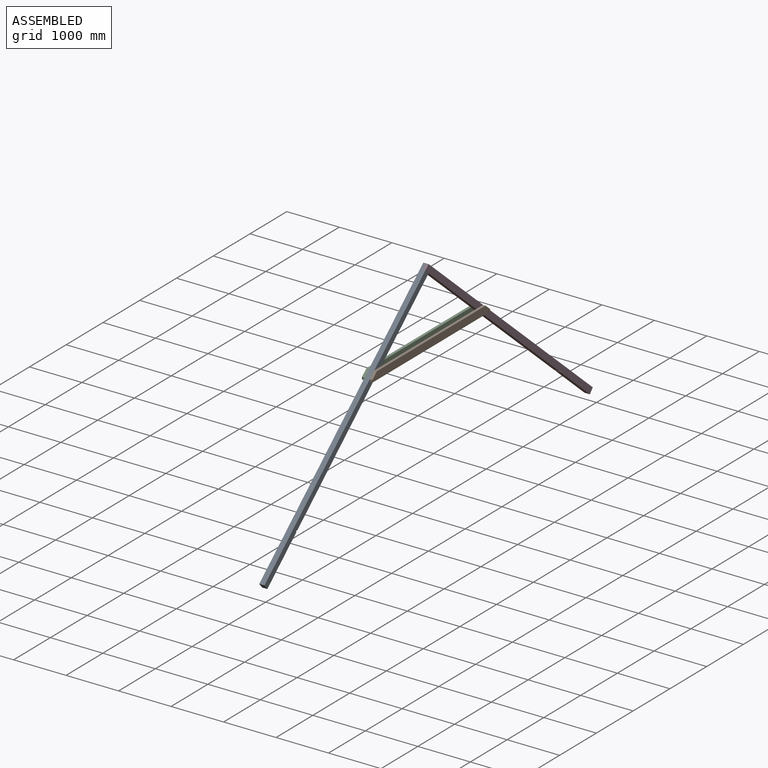
[diagram: assembled view]
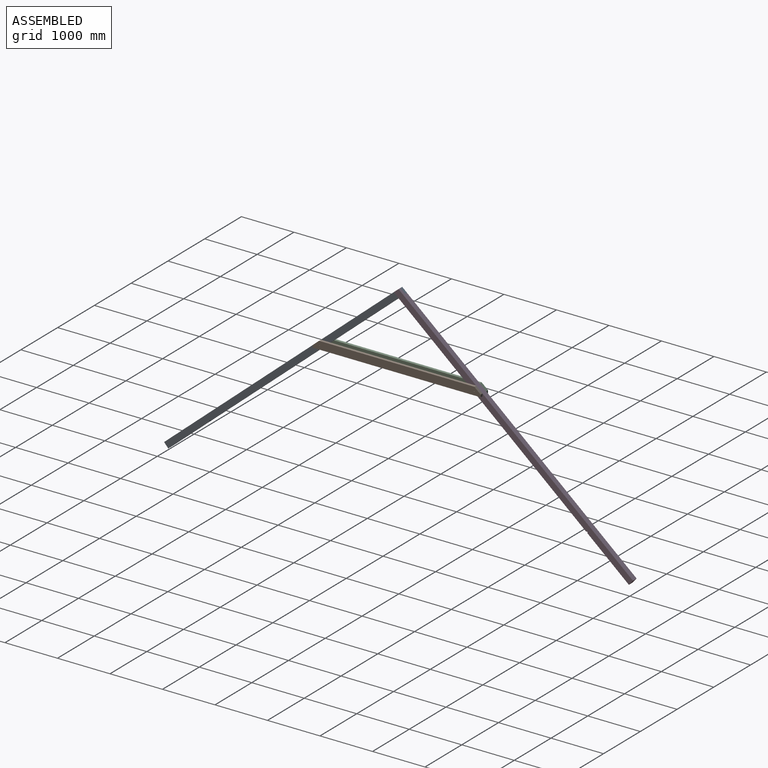
[diagram: assembled view, second angle]
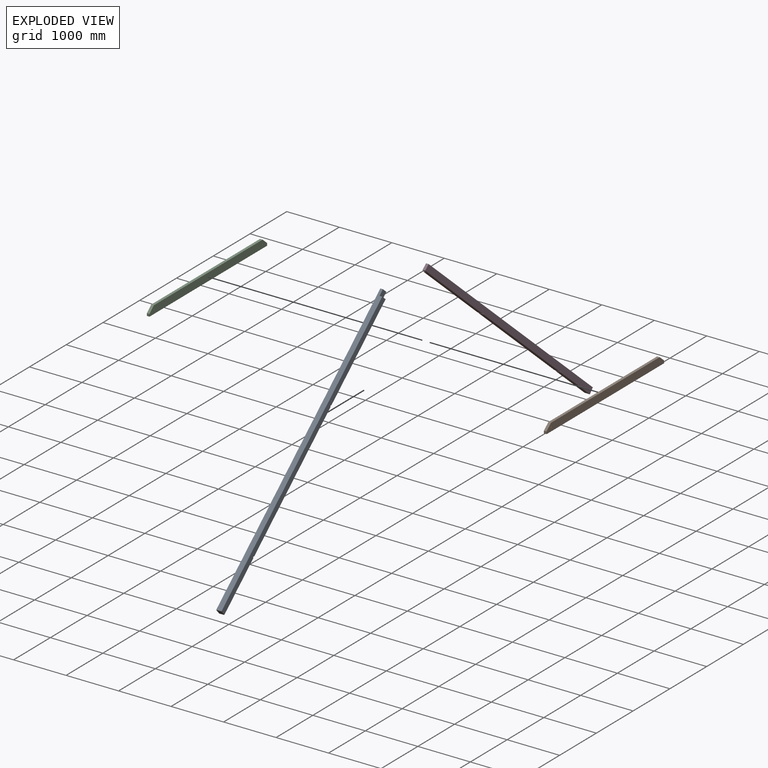
[diagram: exploded view]
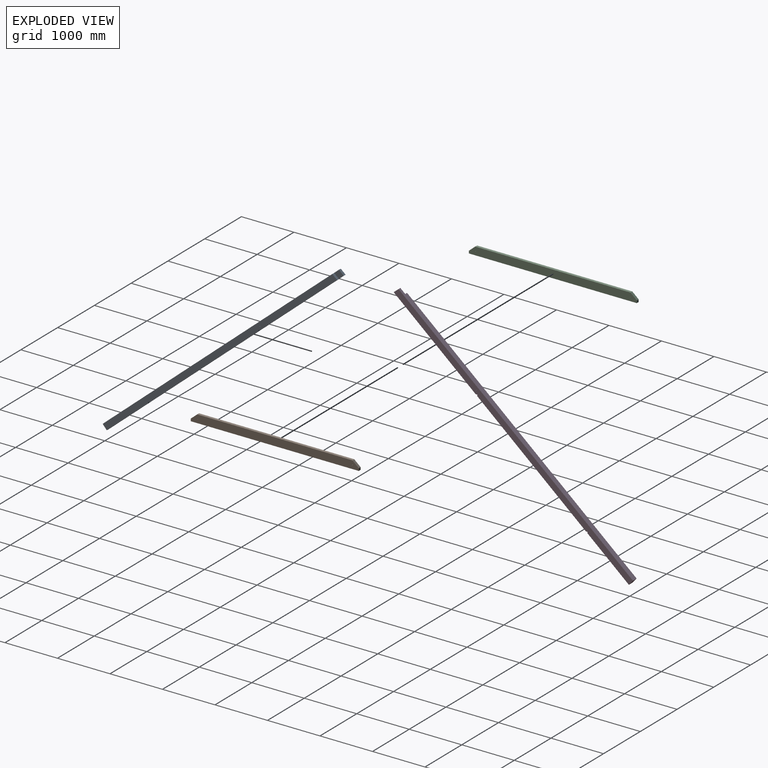
[diagram: exploded view, second angle]
ASSEMBLY  parts=4 mates=3
PART A: 15 faces, bbox 100x4557.3x3918.3 mm
  f0: plane 1561.46x1338.4mm, normal (0,0.65,-0.76), area 199585.5mm2, adj f1,f2,f3,f10,f11,f14
  f1: plane 4465.08x3839.3mm, normal (1,0,0), area 691259.4mm2, adj f0,f4,f5,f6,f7,f8,f9,f10
  f2: plane 4557.27x3918.32mm, normal (-1,0,0), area 705830.8mm2, adj f0,f3,f4,f5,f6,f7,f8,f9
  f3: plane 92.2x79.02mm, normal (0,0.65,0.76), area 6071.4mm2, adj f0,f2,f4,f11
  f4: plane 4465.08x3827.21mm, normal (0,-0.65,0.76), area 582014.2mm2, adj f1,f2,f3,f7,f10,f11
  f5: plane 100x30.73mm, normal (0,0,-1), area 3073.2mm2, adj f1,f2,f6,f9
  f6: plane 2069.27x1773.66mm, normal (0,0.65,-0.76), area 272538.7mm2, adj f1,f2,f5,f13
  f7: plane 100x91.11mm, normal (0,-0.76,-0.65), area 12000mm2, adj f1,f2,f4,f8
  f8: plane 786.98x674.56mm, normal (0,0.65,-0.76), area 103651.9mm2, adj f1,f2,f7,f9
  f9: plane 100x26.34mm, normal (0,1,0), area 2634.2mm2, adj f1,f2,f5,f8
  f10: plane 92.2x79.02mm, normal (0,0.65,0.76), area 6071.4mm2, adj f0,f1,f4,f11
  f11: plane 184.39x158.05mm, normal (1,0,0), area 14571.4mm2, adj f0,f3,f4,f10
  f12: cylinder r=7.5mm len=100mm, axis (1,0,0), area 4712.4mm2, adj f1,f2
  f13: plane 100x26.34mm, normal (0,1,0), area 2634.2mm2, adj f1,f2,f6,f14
  f14: plane 100x30.73mm, normal (0,0,-1), area 3073.2mm2, adj f0,f1,f2,f13
PART B: 10 faces, bbox 50x3200x150 mm
  f0: plane 2957.32x50mm, normal (0,0,1), area 147865.9mm2, adj f1,f5,f6,f7
  f1: plane 121.34x104.01mm, normal (0,-0.65,0.76), area 7990.8mm2, adj f0,f2,f5,f6
  f2: plane 50x45.99mm, normal (0,-1,0), area 2299.7mm2, adj f1,f3,f5,f6
  f3: plane 3200x50mm, normal (0,0,-1), area 160000mm2, adj f2,f5,f6,f8
  f4: cylinder r=7.5mm len=50mm, axis (-1,0,0), area 2356.2mm2, adj f5,f6
  f5: plane 3200x150mm, normal (1,0,0), area 467026.3mm2, adj f0,f1,f2,f3,f4,f7,f8,f9
  f6: plane 3200x150mm, normal (-1,0,0), area 467026.3mm2, adj f0,f1,f2,f3,f4,f7,f8,f9
  f7: plane 121.34x104.01mm, normal (0,0.65,0.76), area 7990.8mm2, adj f0,f5,f6,f8
  f8: plane 50x45.99mm, normal (0,1,0), area 2299.7mm2, adj f3,f5,f6,f7
  f9: cylinder r=7.5mm len=50mm, axis (-1,0,0), area 2356.2mm2, adj f5,f6
PART C: same geometry as B
PART D: same geometry as A
PLACE A t=(824.38,2642.54,-4433.32)mm
PLACE B t=(924.38,2642.54,-4433.32)mm
PLACE C t=(774.38,2642.54,-4433.32)mm
PLACE D rot(axis=(0,0,1),180deg) t=(924.38,2442.54,-4433.32)mm
MATE fastened B.f4 <-> A.f12  axis (-1,0,0) through (924.38,1068.58,441.68)mm
MATE fastened D.f11 <-> A.f11  axis (-1,0,0) through (874.38,2542.54,1705.08)mm
MATE fastened C.f4 <-> A.f12  axis (1,0,0) through (824.38,1068.58,441.68)mm
